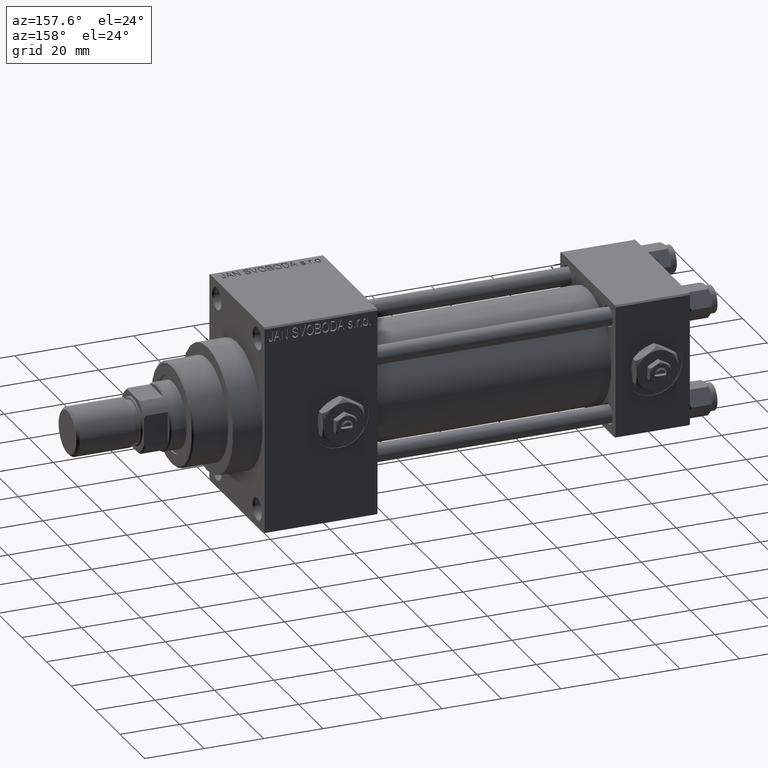
[diagram: clean part render]
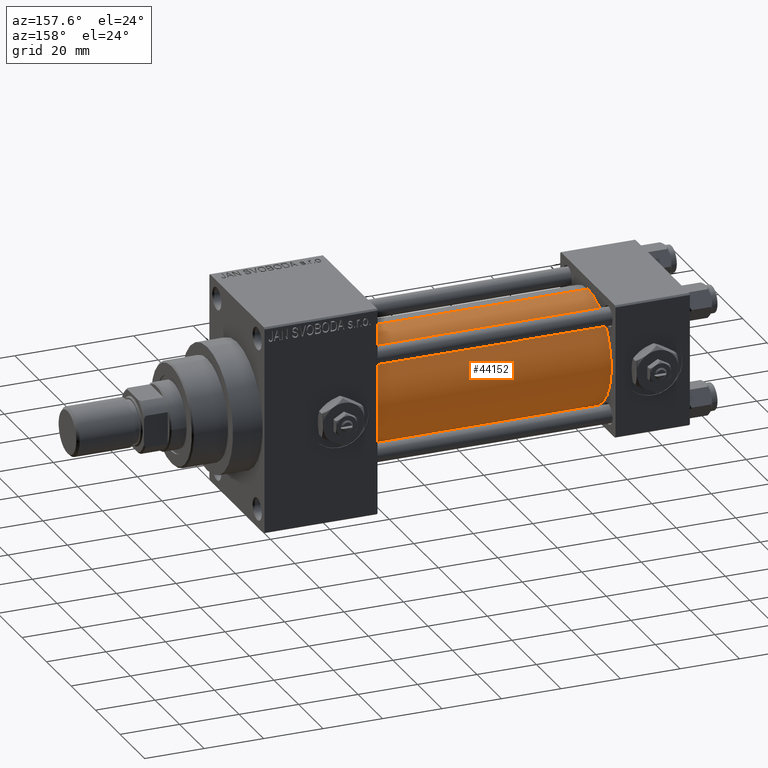
[diagram: same view with one face highlighted and labeled with its STEP entity id]
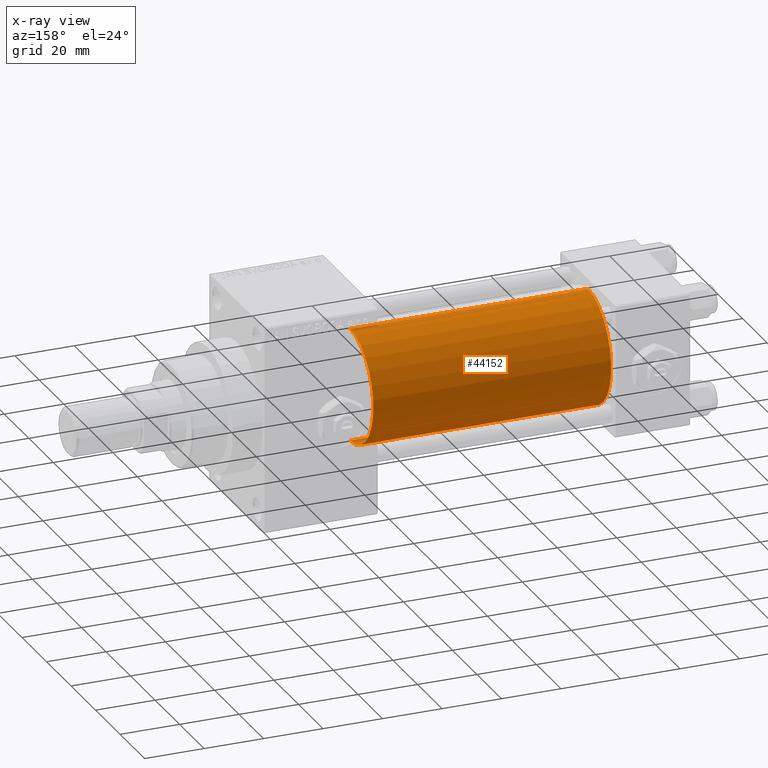
[diagram: x-ray of the same camera — body ghosted, the highlighted face saturated]
A machine part, auxiliary view. The second image highlights one B-rep face of the part: STEP entity #44152.
The next image is the same camera in x-ray: the body ghosted, the highlighted face saturated — about 0% of this face is hidden behind the body in this view.
In plain terms, the highlighted cylindrical surface (partial cylindrical patch) has radius 19 mm, axis along (-1, -0, -0).
Its self-contained STEP definition (entity closure, byte-faithful):
#445 = DIRECTION ( 'NONE',  ( 0.000000000000000000, 0.000000000000000000, 1.000000000000000000 ) ) ;
#657 = VECTOR ( 'NONE', #48771, 1000.000000000000000 ) ;
#685 = CARTESIAN_POINT ( 'NONE',  ( 105.0000000000000142, -2.602085213965210642E-15, 0.000000000000000000 ) ) ;
#3713 = EDGE_CURVE ( 'NONE', #39459, #7652, #30190, .T. ) ;
#6192 = EDGE_CURVE ( 'NONE', #37847, #7652, #21711, .T. ) ;
#6466 = DIRECTION ( 'NONE',  ( 0.000000000000000000, 0.000000000000000000, 1.000000000000000000 ) ) ;
#6695 = CARTESIAN_POINT ( 'NONE',  ( 105.0000000000000142, -2.602085213965210642E-15, 19.00000000000000000 ) ) ;
#7652 = VERTEX_POINT ( 'NONE', #24364 ) ;
#8094 = VERTEX_POINT ( 'NONE', #37256 ) ;
#11874 = DIRECTION ( 'NONE',  ( -1.000000000000000000, -0.000000000000000000, -0.000000000000000000 ) ) ;
#12604 = CARTESIAN_POINT ( 'NONE',  ( 24.99999999999999289, -2.752562955852396712E-16, -19.00000000000000000 ) ) ;
#13234 = AXIS2_PLACEMENT_3D ( 'NONE', #26809, #42109, #47100 ) ;
#13243 = CARTESIAN_POINT ( 'NONE',  ( 24.99999999999999289, -2.602085213965210642E-15, 0.000000000000000000 ) ) ;
#15150 = LINE ( 'NONE', #49223, #41119 ) ;
#17407 = AXIS2_PLACEMENT_3D ( 'NONE', #685, #18745, #445 ) ;
#18745 = DIRECTION ( 'NONE',  ( -1.000000000000000000, -0.000000000000000000, -0.000000000000000000 ) ) ;
#21711 = LINE ( 'NONE', #6695, #657 ) ;
#22971 = AXIS2_PLACEMENT_3D ( 'NONE', #13243, #24744, #6466 ) ;
#24364 = CARTESIAN_POINT ( 'NONE',  ( 24.99999999999999289, -2.602085213965210642E-15, 19.00000000000000000 ) ) ;
#24744 = DIRECTION ( 'NONE',  ( 1.000000000000000000, -0.000000000000000000, 0.000000000000000000 ) ) ;
#26809 = CARTESIAN_POINT ( 'NONE',  ( 105.0000000000000142, -2.602085213965210642E-15, 0.000000000000000000 ) ) ;
#28827 = ORIENTED_EDGE ( 'NONE', *, *, #38898, .F. ) ;
#30190 = CIRCLE ( 'NONE', #22971, 19.00000000000000000 ) ;
#34017 = FACE_OUTER_BOUND ( 'NONE', #43569, .T. ) ;
#34820 = CIRCLE ( 'NONE', #13234, 19.00000000000000000 ) ;
#35397 = ORIENTED_EDGE ( 'NONE', *, *, #6192, .F. ) ;
#36236 = EDGE_CURVE ( 'NONE', #8094, #39459, #15150, .T. ) ;
#37256 = CARTESIAN_POINT ( 'NONE',  ( 105.0000000000000142, -2.752562955852396712E-16, -19.00000000000000000 ) ) ;
#37847 = VERTEX_POINT ( 'NONE', #42407 ) ;
#38898 = EDGE_CURVE ( 'NONE', #8094, #37847, #34820, .T. ) ;
#39459 = VERTEX_POINT ( 'NONE', #12604 ) ;
#40674 = ORIENTED_EDGE ( 'NONE', *, *, #3713, .T. ) ;
#41119 = VECTOR ( 'NONE', #11874, 1000.000000000000000 ) ;
#42039 = CYLINDRICAL_SURFACE ( 'NONE', #17407, 19.00000000000000000 ) ;
#42109 = DIRECTION ( 'NONE',  ( 1.000000000000000000, 0.000000000000000000, 0.000000000000000000 ) ) ;
#42407 = CARTESIAN_POINT ( 'NONE',  ( 105.0000000000000142, -2.602085213965210642E-15, 19.00000000000000000 ) ) ;
#43569 = EDGE_LOOP ( 'NONE', ( #28827, #48205, #40674, #35397 ) ) ;
#44152 = ADVANCED_FACE ( 'NONE', ( #34017 ), #42039, .T. ) ;
#47100 = DIRECTION ( 'NONE',  ( 0.000000000000000000, 0.000000000000000000, -1.000000000000000000 ) ) ;
#48205 = ORIENTED_EDGE ( 'NONE', *, *, #36236, .T. ) ;
#48771 = DIRECTION ( 'NONE',  ( -1.000000000000000000, -0.000000000000000000, -0.000000000000000000 ) ) ;
#49223 = CARTESIAN_POINT ( 'NONE',  ( 105.0000000000000142, -2.752562955852396712E-16, -19.00000000000000000 ) ) ;